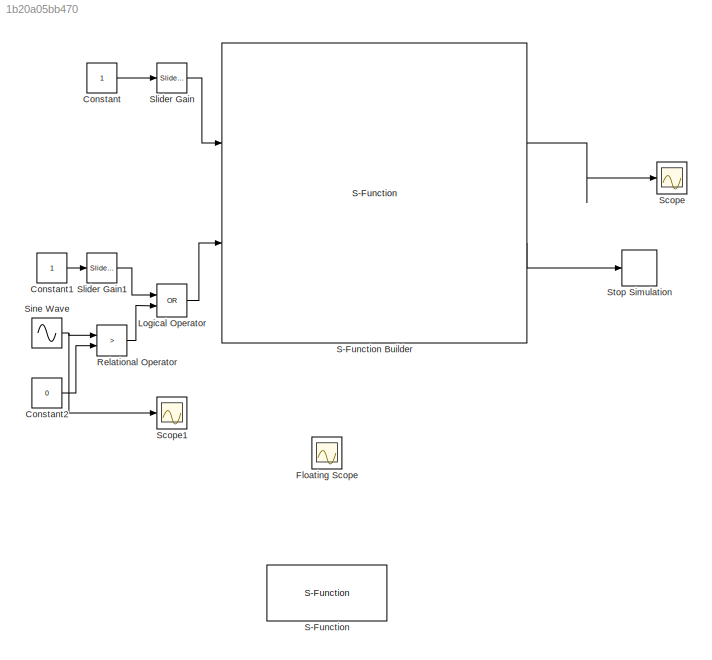
MODEL slx_1b20a05bb470
KIND model
BLOCK [Constant] Constant
  LockScale = on
  OutDataTypeStr = boolean
  OutMax = 1
  OutMin = 0
BLOCK [Constant] Constant1
  LockScale = on
  OutDataTypeStr = boolean
  OutMax = 1
  OutMin = 0
BLOCK [Constant] Constant2
  LockScale = on
  OutDataTypeStr = boolean
  OutMax = 1
  OutMin = 0
  Value = 0
BLOCK [Scope] Floating Scope
  DataFormat = StructureWithTime
  Floating = on
  NumInputPorts = 1
  Ports = []
  SampleTime = 0
  SaveName = ScopeData2
  ShowLegends = off
BLOCK [Logic] Logical Operator
  AllPortsSameDT = off
  Operator = OR
  OutDataTypeStr = boolean
  Ports = [2, 1]
BLOCK [RelationalOperator] Relational Operator
  InputSameDT = off
  Operator = >
  OutDataTypeStr = boolean
  Ports = [2, 1]
BLOCK [S-Function] S-Function
  EnableBusSupport = off
  FunctionName = BBB_Driver_USRLED
  Parameters = uint8(4),uint8(6)
  Ports = [2, 2]
  SFunctionModules = BBB_Driver_USRLED_wrapper
BLOCK [S-Function] S-Function Builder
  CopyFcn = set_param(gcbh,'LinkStatus','none')
  EnableBusSupport = off
  FunctionName = BBB_Driver_USRLED
  InitFcn = try, set_param(gcb,'FunctionName','BBB_Driver_USRLED'), end
  OpenFcn = sfunctionwizard(gcbh)
  Parameters = uint8(4),uint8(6)
  Ports = [2, 2]
  PreSaveFcn = try, set_param(gcb,'FunctionName','BBB_Driver_USRLED'), end
  SFunctionModules = BBB_Driver_USRLED_wrapper
BLOCK [Scope] Scope
  DataFormat = StructureWithTime
  Floating = off
  NumInputPorts = 1
  Ports = [1]
  SampleTime = 0
  ShowLegends = off
  TimeRange = 10
BLOCK [Scope] Scope1
  DataFormat = StructureWithTime
  Floating = off
  NumInputPorts = 1
  Ports = [1]
  SampleTime = 0
  SaveName = ScopeData1
  ShowLegends = off
  TimeRange = 10
BLOCK [Sin] Sine Wave
  Frequency = 5
  Ports = [0, 1]
BLOCK [Reference] Slider Gain  REF=simulink/Math
Operations/Slider
Gain
  Ports = [1, 1]
  SourceBlock = simulink/Math\nOperations/Slider\nGain
  SourceType = Slider Gain
  gain = 1
  high = 1
  low = 0
BLOCK [Reference] Slider Gain1  REF=simulink/Math
Operations/Slider
Gain
  Ports = [1, 1]
  SourceBlock = simulink/Math\nOperations/Slider\nGain
  SourceType = Slider Gain
  gain = 0
  high = 1
  low = 0
BLOCK [Stop] Stop Simulation
LINE Constant1:1 -> Slider Gain1:1
LINE Constant2:1 -> Relational Operator:2
LINE Constant:1 -> Slider Gain:1
LINE Logical Operator:1 -> S-Function Builder:2
LINE Relational Operator:1 -> Logical Operator:2
LINE S-Function Builder:1 -> Scope:1
LINE S-Function Builder:2 -> Stop Simulation:1
NET Sine Wave:1 -> Relational Operator:1, Scope1:1
LINE Slider Gain1:1 -> Logical Operator:1
LINE Slider Gain:1 -> S-Function Builder:1
note: NET lines group one-source signal fan-out (src -> all destinations, sorted); 1:1 wires keep LINE
